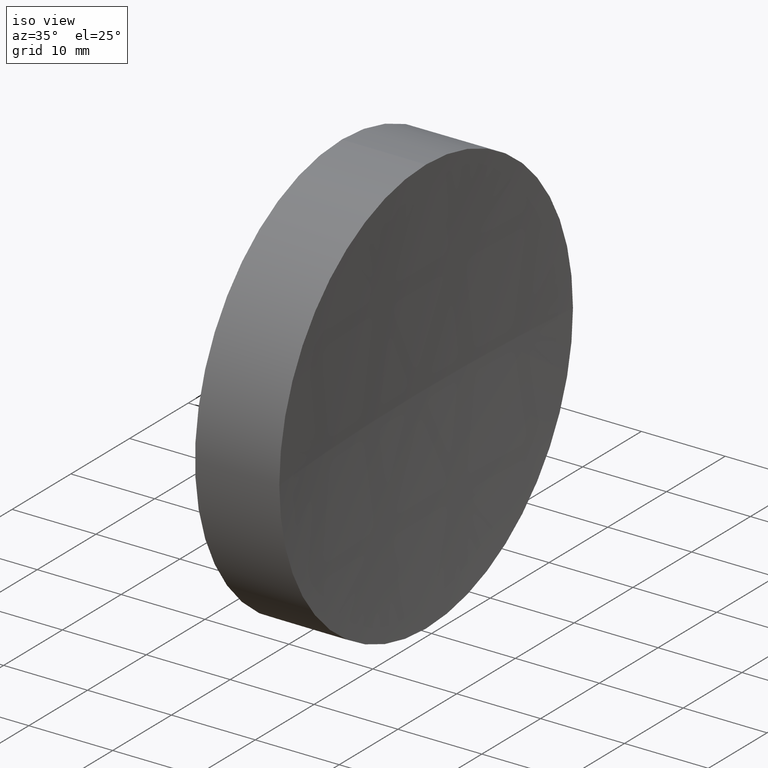
[diagram: clean part render]
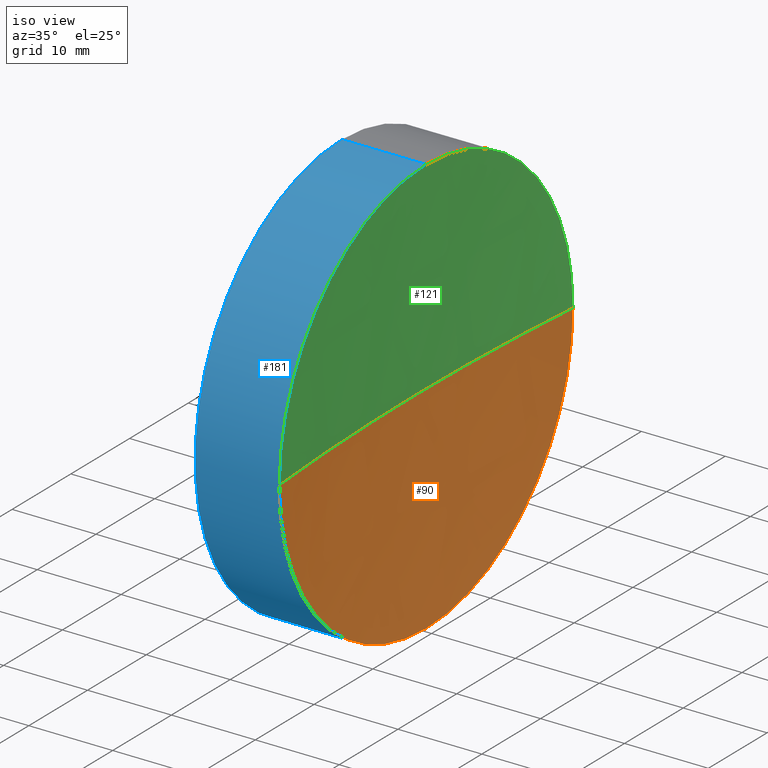
[diagram: same view with three faces highlighted in distinct colors, each labeled with its STEP entity id]
A machine part, iso view with three faces highlighted in distinct colors.
Their STEP definitions:

[orange] entity #90 — the highlighted spherical surface has radius 300 mm.
#1 = EDGE_CURVE ( 'NONE', #88, #142, #150, .T. ) ;
#5 = EDGE_LOOP ( 'NONE', ( #79, #83, #113, #54 ) ) ;
#10 = FACE_OUTER_BOUND ( 'NONE', #5, .T. ) ;
#14 = EDGE_CURVE ( 'NONE', #78, #112, #31, .T. ) ;
#24 = AXIS2_PLACEMENT_3D ( 'NONE', #171, #97, #58 ) ;
#26 = CARTESIAN_POINT ( 'NONE',  ( 539.1853158016228900, 138.7560422467448700, 0.0000000000000000000 ) ) ;
#27 = EDGE_CURVE ( 'NONE', #78, #142, #169, .T. ) ;
#31 = CIRCLE ( 'NONE', #24, 24.99999999999999300 ) ;
#42 = CIRCLE ( 'NONE', #156, 24.99999999999999300 ) ;
#45 = DIRECTION ( 'NONE',  ( 0.0000000000000000000, 0.0000000000000000000, 1.000000000000000000 ) ) ;
#54 = ORIENTED_EDGE ( 'NONE', *, *, #136, .F. ) ;
#58 = DIRECTION ( 'NONE',  ( 0.0000000000000000000, 0.0000000000000000000, 1.000000000000000000 ) ) ;
#74 = DIRECTION ( 'NONE',  ( 0.0000000000000000000, -1.224646799147353200E-016, 1.000000000000000000 ) ) ;
#78 = VERTEX_POINT ( 'NONE', #146 ) ;
#79 = ORIENTED_EDGE ( 'NONE', *, *, #14, .F. ) ;
#83 = ORIENTED_EDGE ( 'NONE', *, *, #27, .T. ) ;
#87 = DIRECTION ( 'NONE',  ( 0.0000000000000000000, -1.000000000000000000, 0.0000000000000000000 ) ) ;
#88 = VERTEX_POINT ( 'NONE', #162 ) ;
#89 = CARTESIAN_POINT ( 'NONE',  ( 239.1853158016228900, 138.7560422467448400, 0.0000000000000000000 ) ) ;
#90 = ADVANCED_FACE ( 'NONE', ( #10 ), #134, .F. ) ;
#97 = DIRECTION ( 'NONE',  ( -1.000000000000000000, -0.0000000000000000000, -0.0000000000000000000 ) ) ;
#109 = AXIS2_PLACEMENT_3D ( 'NONE', #26, #125, #170 ) ;
#112 = VERTEX_POINT ( 'NONE', #128 ) ;
#113 = ORIENTED_EDGE ( 'NONE', *, *, #1, .F. ) ;
#115 = CARTESIAN_POINT ( 'NONE',  ( 539.1853158016228900, 138.7560422467448700, 0.0000000000000000000 ) ) ;
#125 = DIRECTION ( 'NONE',  ( 0.0000000000000000000, 0.0000000000000000000, -1.000000000000000000 ) ) ;
#128 = CARTESIAN_POINT ( 'NONE',  ( 240.2287972240879400, 138.7560422467448700, -24.99999999999999300 ) ) ;
#132 = CARTESIAN_POINT ( 'NONE',  ( 240.2287972240879400, 138.7560422467448700, 0.0000000000000000000 ) ) ;
#134 = SPHERICAL_SURFACE ( 'NONE', #140, 300.0000000000000000 ) ;
#136 = EDGE_CURVE ( 'NONE', #112, #88, #42, .T. ) ;
#140 = AXIS2_PLACEMENT_3D ( 'NONE', #115, #45, #87 ) ;
#142 = VERTEX_POINT ( 'NONE', #89 ) ;
#146 = CARTESIAN_POINT ( 'NONE',  ( 240.2287972240879700, 163.7560422467450100, 3.061616997868400400E-015 ) ) ;
#147 = DIRECTION ( 'NONE',  ( -1.000000000000000000, -0.0000000000000000000, -0.0000000000000000000 ) ) ;
#150 = CIRCLE ( 'NONE', #109, 300.0000000000000000 ) ;
#152 = AXIS2_PLACEMENT_3D ( 'NONE', #161, #74, #176 ) ;
#156 = AXIS2_PLACEMENT_3D ( 'NONE', #132, #147, #179 ) ;
#161 = CARTESIAN_POINT ( 'NONE',  ( 539.1853158016228900, 138.7560422467448700, 0.0000000000000000000 ) ) ;
#162 = CARTESIAN_POINT ( 'NONE',  ( 240.2287972240879700, 113.7560422467447400, 0.0000000000000000000 ) ) ;
#169 = CIRCLE ( 'NONE', #152, 300.0000000000000000 ) ;
#170 = DIRECTION ( 'NONE',  ( -1.000000000000000000, 0.0000000000000000000, 0.0000000000000000000 ) ) ;
#171 = CARTESIAN_POINT ( 'NONE',  ( 240.2287972240879400, 138.7560422467448700, 0.0000000000000000000 ) ) ;
#176 = DIRECTION ( 'NONE',  ( 0.0000000000000000000, -1.000000000000000000, -1.224646799147353200E-016 ) ) ;
#179 = DIRECTION ( 'NONE',  ( 0.0000000000000000000, 0.0000000000000000000, 1.000000000000000000 ) ) ;

[blue] entity #181 — the highlighted cylindrical surface (partial cylindrical patch) has radius 25 mm, axis along (-1, -0, -0).
#4 = CARTESIAN_POINT ( 'NONE',  ( 217.9702860043302100, 138.7560422467448700, 24.99999999999999300 ) ) ;
#12 = CARTESIAN_POINT ( 'NONE',  ( 230.1853110698390300, 138.7560422467448700, -24.99999999999999300 ) ) ;
#17 = EDGE_CURVE ( 'NONE', #112, #41, #62, .T. ) ;
#19 = DIRECTION ( 'NONE',  ( 0.0000000000000000000, 0.0000000000000000000, 1.000000000000000000 ) ) ;
#21 = ORIENTED_EDGE ( 'NONE', *, *, #172, .F. ) ;
#22 = VECTOR ( 'NONE', #157, 1000.000000000000000 ) ;
#29 = DIRECTION ( 'NONE',  ( 0.0000000000000000000, 0.0000000000000000000, 1.000000000000000000 ) ) ;
#30 = DIRECTION ( 'NONE',  ( -1.000000000000000000, -0.0000000000000000000, -0.0000000000000000000 ) ) ;
#37 = EDGE_CURVE ( 'NONE', #144, #123, #40, .T. ) ;
#39 = AXIS2_PLACEMENT_3D ( 'NONE', #75, #100, #164 ) ;
#40 = LINE ( 'NONE', #4, #95 ) ;
#41 = VERTEX_POINT ( 'NONE', #12 ) ;
#42 = CIRCLE ( 'NONE', #156, 24.99999999999999300 ) ;
#53 = ORIENTED_EDGE ( 'NONE', *, *, #37, .T. ) ;
#59 = CARTESIAN_POINT ( 'NONE',  ( 240.2287972240879400, 138.7560422467448700, 24.99999999999999300 ) ) ;
#62 = LINE ( 'NONE', #126, #22 ) ;
#75 = CARTESIAN_POINT ( 'NONE',  ( 230.1853110698390300, 138.7560422467448700, 0.0000000000000000000 ) ) ;
#88 = VERTEX_POINT ( 'NONE', #162 ) ;
#94 = EDGE_CURVE ( 'NONE', #88, #144, #175, .T. ) ;
#95 = VECTOR ( 'NONE', #101, 1000.000000000000000 ) ;
#100 = DIRECTION ( 'NONE',  ( -1.000000000000000000, -0.0000000000000000000, -0.0000000000000000000 ) ) ;
#101 = DIRECTION ( 'NONE',  ( -1.000000000000000000, -0.0000000000000000000, -0.0000000000000000000 ) ) ;
#102 = DIRECTION ( 'NONE',  ( -1.000000000000000000, -0.0000000000000000000, -0.0000000000000000000 ) ) ;
#105 = CARTESIAN_POINT ( 'NONE',  ( 230.1853110698390300, 138.7560422467448700, 24.99999999999999300 ) ) ;
#112 = VERTEX_POINT ( 'NONE', #128 ) ;
#114 = CARTESIAN_POINT ( 'NONE',  ( 240.2287972240879400, 138.7560422467448700, 0.0000000000000000000 ) ) ;
#123 = VERTEX_POINT ( 'NONE', #105 ) ;
#126 = CARTESIAN_POINT ( 'NONE',  ( 217.9702860043302100, 138.7560422467448700, -24.99999999999999300 ) ) ;
#128 = CARTESIAN_POINT ( 'NONE',  ( 240.2287972240879400, 138.7560422467448700, -24.99999999999999300 ) ) ;
#131 = AXIS2_PLACEMENT_3D ( 'NONE', #174, #30, #19 ) ;
#132 = CARTESIAN_POINT ( 'NONE',  ( 240.2287972240879400, 138.7560422467448700, 0.0000000000000000000 ) ) ;
#136 = EDGE_CURVE ( 'NONE', #112, #88, #42, .T. ) ;
#138 = CYLINDRICAL_SURFACE ( 'NONE', #131, 24.99999999999999300 ) ;
#141 = CIRCLE ( 'NONE', #39, 24.99999999999999300 ) ;
#144 = VERTEX_POINT ( 'NONE', #59 ) ;
#147 = DIRECTION ( 'NONE',  ( -1.000000000000000000, -0.0000000000000000000, -0.0000000000000000000 ) ) ;
#156 = AXIS2_PLACEMENT_3D ( 'NONE', #132, #147, #179 ) ;
#157 = DIRECTION ( 'NONE',  ( -1.000000000000000000, -0.0000000000000000000, -0.0000000000000000000 ) ) ;
#158 = ORIENTED_EDGE ( 'NONE', *, *, #136, .T. ) ;
#162 = CARTESIAN_POINT ( 'NONE',  ( 240.2287972240879700, 113.7560422467447400, 0.0000000000000000000 ) ) ;
#163 = ORIENTED_EDGE ( 'NONE', *, *, #17, .F. ) ;
#164 = DIRECTION ( 'NONE',  ( 0.0000000000000000000, 0.0000000000000000000, 1.000000000000000000 ) ) ;
#166 = ORIENTED_EDGE ( 'NONE', *, *, #94, .T. ) ;
#167 = FACE_OUTER_BOUND ( 'NONE', #186, .T. ) ;
#168 = AXIS2_PLACEMENT_3D ( 'NONE', #114, #102, #29 ) ;
#172 = EDGE_CURVE ( 'NONE', #41, #123, #141, .T. ) ;
#174 = CARTESIAN_POINT ( 'NONE',  ( 217.9702860043302100, 138.7560422467448700, 0.0000000000000000000 ) ) ;
#175 = CIRCLE ( 'NONE', #168, 24.99999999999999300 ) ;
#179 = DIRECTION ( 'NONE',  ( 0.0000000000000000000, 0.0000000000000000000, 1.000000000000000000 ) ) ;
#181 = ADVANCED_FACE ( 'NONE', ( #167 ), #138, .T. ) ;
#186 = EDGE_LOOP ( 'NONE', ( #163, #158, #166, #53, #21 ) ) ;

[green] entity #121 — the highlighted spherical surface has radius 300 mm.
#1 = EDGE_CURVE ( 'NONE', #88, #142, #150, .T. ) ;
#3 = DIRECTION ( 'NONE',  ( -1.000000000000000000, -0.0000000000000000000, -0.0000000000000000000 ) ) ;
#9 = AXIS2_PLACEMENT_3D ( 'NONE', #47, #3, #178 ) ;
#13 = ORIENTED_EDGE ( 'NONE', *, *, #94, .F. ) ;
#25 = ORIENTED_EDGE ( 'NONE', *, *, #124, .F. ) ;
#26 = CARTESIAN_POINT ( 'NONE',  ( 539.1853158016228900, 138.7560422467448700, 0.0000000000000000000 ) ) ;
#27 = EDGE_CURVE ( 'NONE', #78, #142, #169, .T. ) ;
#29 = DIRECTION ( 'NONE',  ( 0.0000000000000000000, 0.0000000000000000000, 1.000000000000000000 ) ) ;
#47 = CARTESIAN_POINT ( 'NONE',  ( 240.2287972240879400, 138.7560422467448700, 0.0000000000000000000 ) ) ;
#50 = ORIENTED_EDGE ( 'NONE', *, *, #1, .T. ) ;
#59 = CARTESIAN_POINT ( 'NONE',  ( 240.2287972240879400, 138.7560422467448700, 24.99999999999999300 ) ) ;
#61 = CARTESIAN_POINT ( 'NONE',  ( 539.1853158016228900, 138.7560422467448700, 0.0000000000000000000 ) ) ;
#67 = FACE_OUTER_BOUND ( 'NONE', #180, .T. ) ;
#74 = DIRECTION ( 'NONE',  ( 0.0000000000000000000, -1.224646799147353200E-016, 1.000000000000000000 ) ) ;
#78 = VERTEX_POINT ( 'NONE', #146 ) ;
#85 = DIRECTION ( 'NONE',  ( 0.0000000000000000000, -1.000000000000000000, 0.0000000000000000000 ) ) ;
#88 = VERTEX_POINT ( 'NONE', #162 ) ;
#89 = CARTESIAN_POINT ( 'NONE',  ( 239.1853158016228900, 138.7560422467448400, 0.0000000000000000000 ) ) ;
#94 = EDGE_CURVE ( 'NONE', #88, #144, #175, .T. ) ;
#99 = SPHERICAL_SURFACE ( 'NONE', #185, 300.0000000000000000 ) ;
#102 = DIRECTION ( 'NONE',  ( -1.000000000000000000, -0.0000000000000000000, -0.0000000000000000000 ) ) ;
#108 = ORIENTED_EDGE ( 'NONE', *, *, #27, .F. ) ;
#109 = AXIS2_PLACEMENT_3D ( 'NONE', #26, #125, #170 ) ;
#114 = CARTESIAN_POINT ( 'NONE',  ( 240.2287972240879400, 138.7560422467448700, 0.0000000000000000000 ) ) ;
#121 = ADVANCED_FACE ( 'NONE', ( #67 ), #99, .F. ) ;
#124 = EDGE_CURVE ( 'NONE', #144, #78, #182, .T. ) ;
#125 = DIRECTION ( 'NONE',  ( 0.0000000000000000000, 0.0000000000000000000, -1.000000000000000000 ) ) ;
#130 = DIRECTION ( 'NONE',  ( 0.0000000000000000000, 0.0000000000000000000, 1.000000000000000000 ) ) ;
#142 = VERTEX_POINT ( 'NONE', #89 ) ;
#144 = VERTEX_POINT ( 'NONE', #59 ) ;
#146 = CARTESIAN_POINT ( 'NONE',  ( 240.2287972240879700, 163.7560422467450100, 3.061616997868400400E-015 ) ) ;
#150 = CIRCLE ( 'NONE', #109, 300.0000000000000000 ) ;
#152 = AXIS2_PLACEMENT_3D ( 'NONE', #161, #74, #176 ) ;
#161 = CARTESIAN_POINT ( 'NONE',  ( 539.1853158016228900, 138.7560422467448700, 0.0000000000000000000 ) ) ;
#162 = CARTESIAN_POINT ( 'NONE',  ( 240.2287972240879700, 113.7560422467447400, 0.0000000000000000000 ) ) ;
#168 = AXIS2_PLACEMENT_3D ( 'NONE', #114, #102, #29 ) ;
#169 = CIRCLE ( 'NONE', #152, 300.0000000000000000 ) ;
#170 = DIRECTION ( 'NONE',  ( -1.000000000000000000, 0.0000000000000000000, 0.0000000000000000000 ) ) ;
#175 = CIRCLE ( 'NONE', #168, 24.99999999999999300 ) ;
#176 = DIRECTION ( 'NONE',  ( 0.0000000000000000000, -1.000000000000000000, -1.224646799147353200E-016 ) ) ;
#178 = DIRECTION ( 'NONE',  ( 0.0000000000000000000, 0.0000000000000000000, 1.000000000000000000 ) ) ;
#180 = EDGE_LOOP ( 'NONE', ( #108, #25, #13, #50 ) ) ;
#182 = CIRCLE ( 'NONE', #9, 24.99999999999999300 ) ;
#185 = AXIS2_PLACEMENT_3D ( 'NONE', #61, #130, #85 ) ;